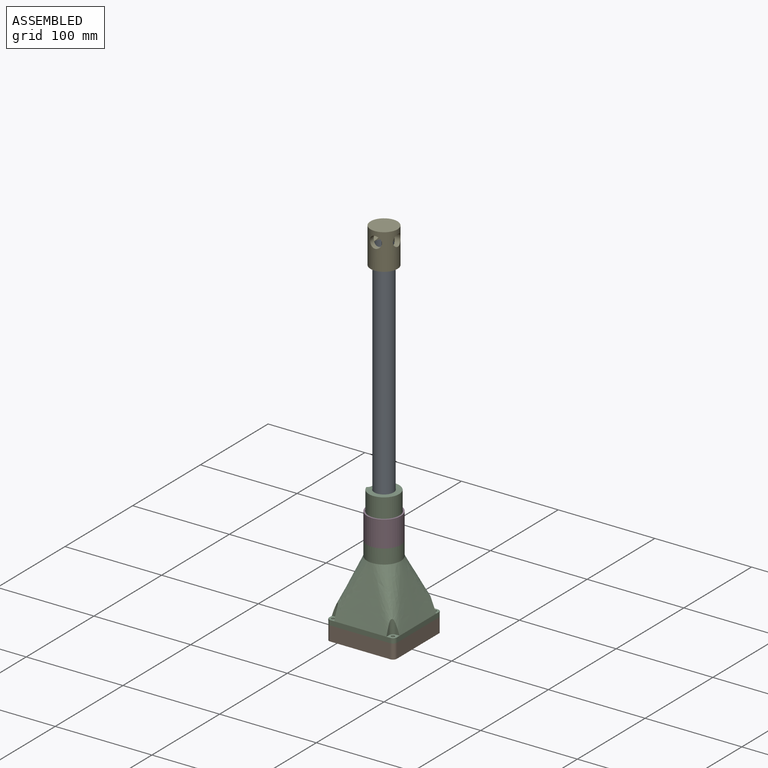
[diagram: assembled view]
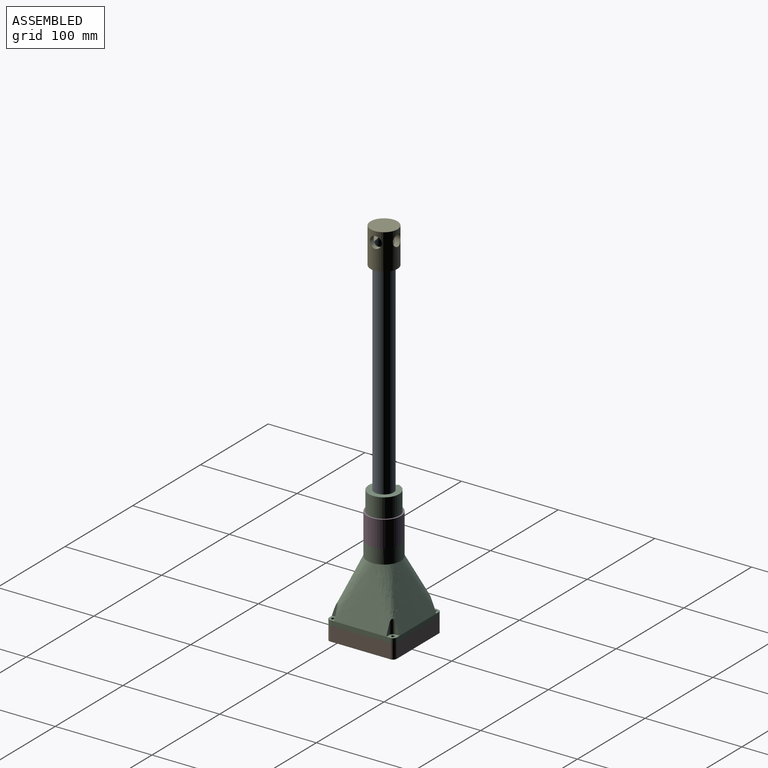
[diagram: assembled view, second angle]
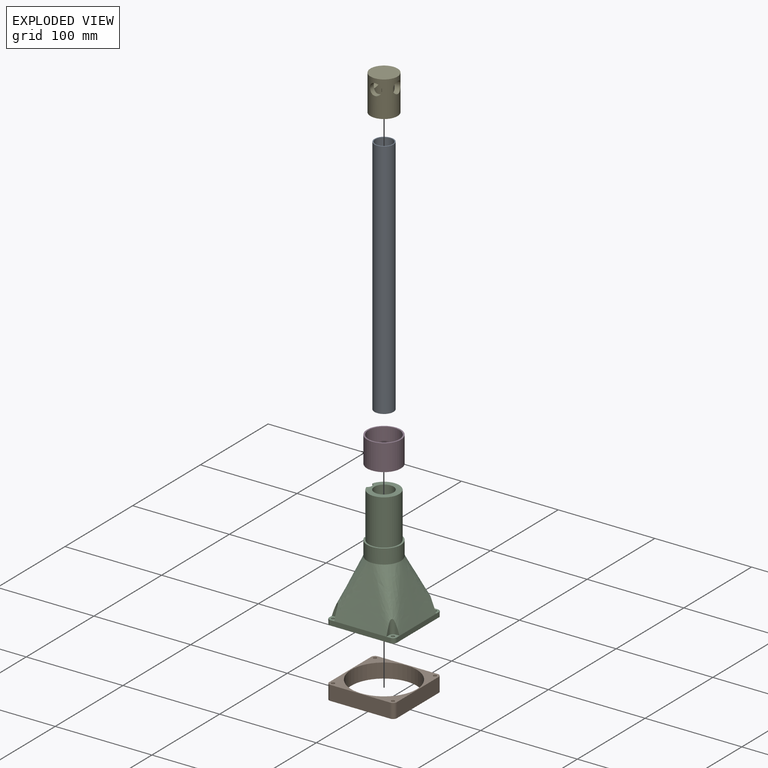
[diagram: exploded view]
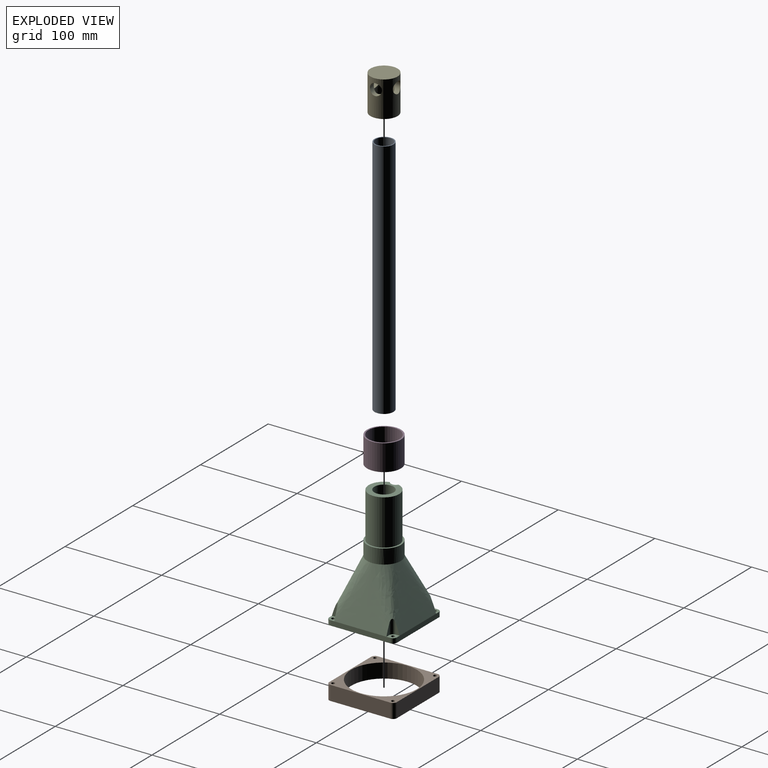
[diagram: exploded view, second angle]
ASSEMBLY  parts=5 mates=8
PART A: 4 faces, bbox 19.7x19.7x250 mm
  f0: cylinder r=8.85mm len=250mm, axis (0,0,-1), area 13901.5mm2, adj f2,f3
  f1: cylinder r=9.85mm len=250mm, axis (0,0,-1), area 15472.3mm2, adj f2,f3
  f2: plane 19.7x19.7mm, normal (0,0,1), area 58.7mm2, adj f0,f1
  f3: plane 19.7x19.7mm, normal (0,0,-1), area 58.7mm2, adj f0,f1
PART B: 15 faces, bbox 70x70x15 mm
  f0: plane 62x15mm, normal (-1,0,0), area 930mm2, adj f1,f12,f13,f14
  f1: cylinder r=4mm len=15mm, axis (0,0,-1), area 94.2mm2, adj f0,f2,f13,f14
  f2: plane 62x15mm, normal (0,-1,0), area 930mm2, adj f1,f3,f13,f14
  f3: cylinder r=4mm len=15mm, axis (0,0,-1), area 94.2mm2, adj f2,f4,f13,f14
  f4: plane 62x15mm, normal (1,0,0), area 930mm2, adj f3,f5,f13,f14
  f5: cylinder r=4mm len=15mm, axis (0,0,-1), area 94.2mm2, adj f4,f6,f13,f14
  f6: plane 62x15mm, normal (0,1,0), area 930mm2, adj f5,f12,f13,f14
  f7: cylinder r=34mm len=68mm, axis (0,0,-1), area 3204.4mm2, adj f13,f14
  f8: cylinder r=1.75mm len=15mm, axis (0,0,-1), area 164.9mm2, adj f13,f14
  f9: cylinder r=1.75mm len=15mm, axis (0,0,-1), area 164.9mm2, adj f13,f14
  f10: cylinder r=1.75mm len=15mm, axis (0,0,-1), area 164.9mm2, adj f13,f14
  f11: cylinder r=1.75mm len=15mm, axis (0,0,-1), area 164.9mm2, adj f13,f14
  f12: cylinder r=4mm len=15mm, axis (0,0,-1), area 94.2mm2, adj f0,f6,f13,f14
  f13: plane 70x70mm, normal (0,0,1), area 1216.1mm2, adj f0,f1,f2,f3,f4,f5,f6,f7
  f14: plane 70x70mm, normal (0,0,-1), area 1216.1mm2, adj f0,f1,f2,f3,f4,f5,f6,f7
PART C: 41 faces, bbox 70.6x70.6x122.6 mm
  f0: bspline ~70x70mm, area 10660.8mm2, adj f3,f12,f14,f16,f22,f25,f26,f27
  f1: cylinder r=15.75mm len=47mm, axis (0,0,-1), area 4232.1mm2, adj f5,f7,f8
  f2: plane 20x20mm, normal (0,0,1), area 59.7mm2, adj f4,f6
  f3: cylinder r=17.5mm len=35mm, axis (0,0,1), area 1549mm2, adj f0,f5,f8,f9
  f4: cylinder r=9mm len=42mm, axis (0,0,1), area 2375mm2, adj f2,f10
  f5: plane 35x34.29mm, normal (0,0,1), area 166mm2, adj f1,f3,f8
  f6: cylinder r=10mm len=20mm, axis (0,0,-1), area 1256.6mm2, adj f2,f7
  f7: plane 31.5x30.87mm, normal (0,0,1), area 445mm2, adj f1,f6,f8
  f8: cylinder r=5mm len=57mm, axis (0,0,1), area 648.2mm2, adj f1,f3,f5,f7,f9
  f9: plane 9.9x5mm, normal (0,0,1), area 36.9mm2, adj f3,f8
  f10: cone r=9mm half-angle=21.8deg, axis (0,0,-1), area 7443.9mm2, adj f4,f18
  f11: cylinder r=4mm len=5mm, axis (0,0,1), area 31.4mm2, adj f12,f22,f24,f36
  f12: plane 62x5mm, normal (0,1,0), area 310mm2, adj f0,f11,f13,f24,f32,f36
  f13: cylinder r=4mm len=5mm, axis (0,0,1), area 31.4mm2, adj f12,f14,f24,f32
  f14: plane 62x5mm, normal (1,0,0), area 310mm2, adj f0,f13,f15,f24,f32,f40
  f15: cylinder r=4mm len=5mm, axis (0,0,1), area 31.4mm2, adj f14,f16,f24,f40
  f16: plane 62x5mm, normal (0,-1,0), area 310mm2, adj f0,f15,f17,f24,f28,f40
  f17: cylinder r=4mm len=5mm, axis (0,0,1), area 31.4mm2, adj f16,f22,f24,f28
  f18: cylinder r=31mm len=62mm, axis (0,0,1), area 973.9mm2, adj f10,f24
  f19: cylinder r=1.75mm len=5mm, axis (0,0,1), area 55mm2, adj f24,f40
  f20: cylinder r=1.75mm len=5mm, axis (0,0,1), area 55mm2, adj f24,f36
  f21: cylinder r=1.75mm len=5mm, axis (0,0,1), area 55mm2, adj f24,f32
  f22: plane 62x5mm, normal (-1,0,0), area 310mm2, adj f0,f11,f17,f24,f28,f36
  f23: cylinder r=1.75mm len=5mm, axis (0,0,1), area 55mm2, adj f24,f28
  f24: plane 70x70mm, normal (0,0,-1), area 1828.7mm2, adj f11,f12,f13,f14,f15,f16,f17,f18
  f25: plane 11.34x4.54mm, normal (0,-1,0), area 22.9mm2, adj f0,f26,f28
  f26: cylinder r=4mm len=14.49mm, axis (0,0,-1), area 82.8mm2, adj f0,f25,f27,f28
  f27: plane 11.07x4.57mm, normal (-1,0,0), area 22.3mm2, adj f0,f26,f28
  f28: plane 8x8mm, normal (0,0,1), area 47.5mm2, adj f16,f17,f22,f23,f25,f26,f27
  f29: plane 11.54x4.5mm, normal (1,0,0), area 23.4mm2, adj f0,f31,f32
  f30: plane 10.7x4.52mm, normal (0,1,0), area 21.6mm2, adj f0,f31,f32
  f31: cylinder r=4mm len=14.41mm, axis (0,0,-1), area 82.2mm2, adj f0,f29,f30,f32
  f32: plane 8x8mm, normal (0,0,1), area 47.5mm2, adj f12,f13,f14,f21,f29,f30,f31
  f33: plane 11.07x4.57mm, normal (-1,0,0), area 22.3mm2, adj f0,f34,f36
  f34: cylinder r=4mm len=14.49mm, axis (0,0,-1), area 82.8mm2, adj f0,f33,f35,f36
  f35: plane 11.34x4.54mm, normal (0,1,0), area 22.9mm2, adj f0,f34,f36
  f36: plane 8x8mm, normal (0,0,1), area 47.5mm2, adj f11,f12,f20,f22,f33,f34,f35
  f37: plane 11.54x4.5mm, normal (1,0,0), area 23.4mm2, adj f0,f38,f40
  f38: cylinder r=4mm len=14.41mm, axis (0,0,-1), area 82.2mm2, adj f0,f37,f39,f40
  f39: plane 10.7x4.52mm, normal (0,-1,0), area 21.6mm2, adj f0,f38,f40
  f40: plane 8x8mm, normal (0,0,1), area 47.5mm2, adj f14,f15,f16,f19,f37,f38,f39
PART D: 4 faces, bbox 35x35x27 mm
  f0: cylinder r=16mm len=32mm, axis (0,0,-1), area 2714.3mm2, adj f1,f3
  f1: plane 35x35mm, normal (0,0,-1), area 157.9mm2, adj f0,f2
  f2: cylinder r=17.5mm len=35mm, axis (0,0,-1), area 2968.8mm2, adj f1,f3
  f3: plane 35x35mm, normal (0,0,1), area 157.9mm2, adj f0,f2
PART E: 11 faces, bbox 28x28x37 mm
  f0: cylinder r=10mm len=20mm, axis (0,0,1), area 1256.6mm2, adj f2,f3
  f1: cylinder r=14mm len=37mm, axis (0,0,1), area 2791.5mm2, adj f2,f5,f6,f7,f8,f10
  f2: plane 28x28mm, normal (0,0,-1), area 301.6mm2, adj f0,f1
  f3: plane 20x20mm, normal (0,0,-1), area 59.7mm2, adj f0,f4
  f4: cylinder r=9mm len=18mm, axis (0,0,-1), area 251.9mm2, adj f3,f5,f6,f7,f8,f9
  f5: cylinder r=6mm len=12mm, axis (0,-1,0), area 204.9mm2, adj f1,f4
  f6: cylinder r=6mm len=12mm, axis (0,-1,0), area 205mm2, adj f1,f4
  f7: cylinder r=6mm len=12mm, axis (1,0,0), area 205mm2, adj f1,f4
  f8: cylinder r=6mm len=12mm, axis (1,0,0), area 204.9mm2, adj f1,f4
  f9: plane 18x18mm, normal (0,0,-1), area 254.5mm2, adj f4
  f10: plane 28x28mm, normal (0,0,1), area 615.8mm2, adj f1
PLACE A rot(axis=(0,0,-1),87.4deg) t=(0,0,36.37)mm
PLACE B t=(-35,-35,-80.63)mm
PLACE C t=(0,0,9.37)mm
PLACE D at identity fixed
PLACE E rot(axis=(0,0,1),92.6deg) t=(0,0,286.37)mm
MATE planar C.f1 <-> A.f1  axis (0,0,1) through (0,0,36.37)mm
MATE planar E.f1 <-> A.f1  axis (0,0,-1) through (0,0,286.37)mm
MATE planar C.f5 <-> D.f0  axis (0,0,1) through (1.66,0,9.37)mm
MATE planar B.f7 <-> C.f3  axis (0,0,1) through (0,0,-65.63)mm
MATE cylindrical C.f1 <-> D.f0  axis (0,0,-1) through (0,0,32.87)mm
MATE cylindrical E.f0 <-> A.f1  axis (0,0,1) through (0,0,276.37)mm
MATE cylindrical C.f6 <-> A.f1  axis (0,0,-1) through (0,0,46.37)mm
MATE cylindrical C.f17 <-> B.f1  axis (0,0,-1) through (-31,-31,-65.63)mm
